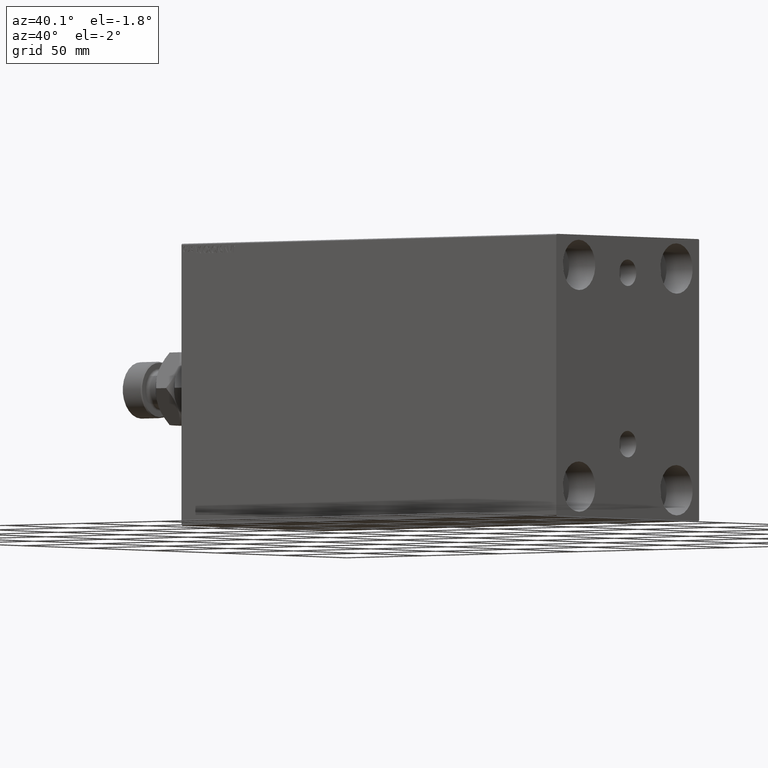
[diagram: clean part render]
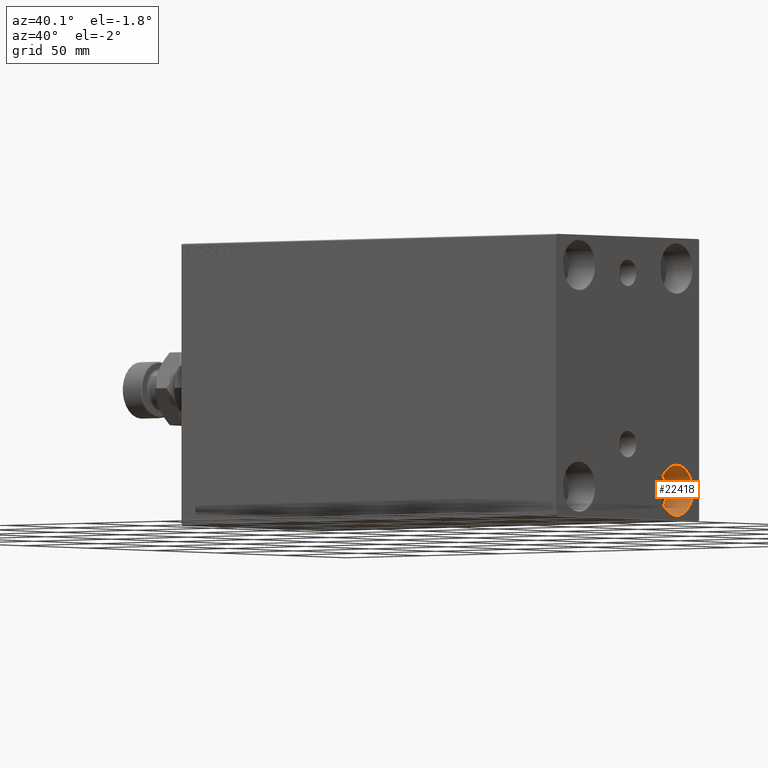
[diagram: same view with one face highlighted and labeled with its STEP entity id]
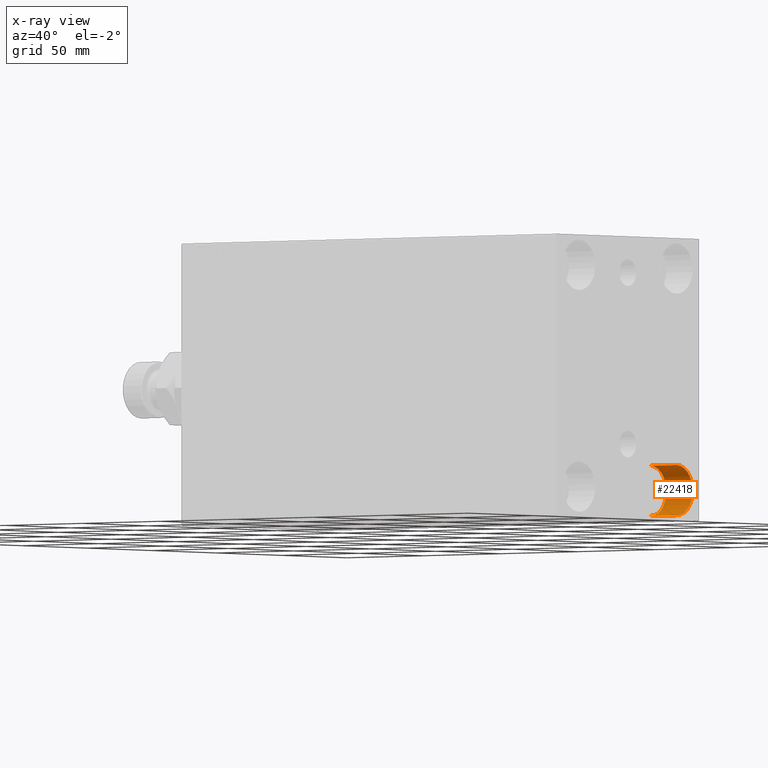
[diagram: x-ray of the same camera — body ghosted, the highlighted face saturated]
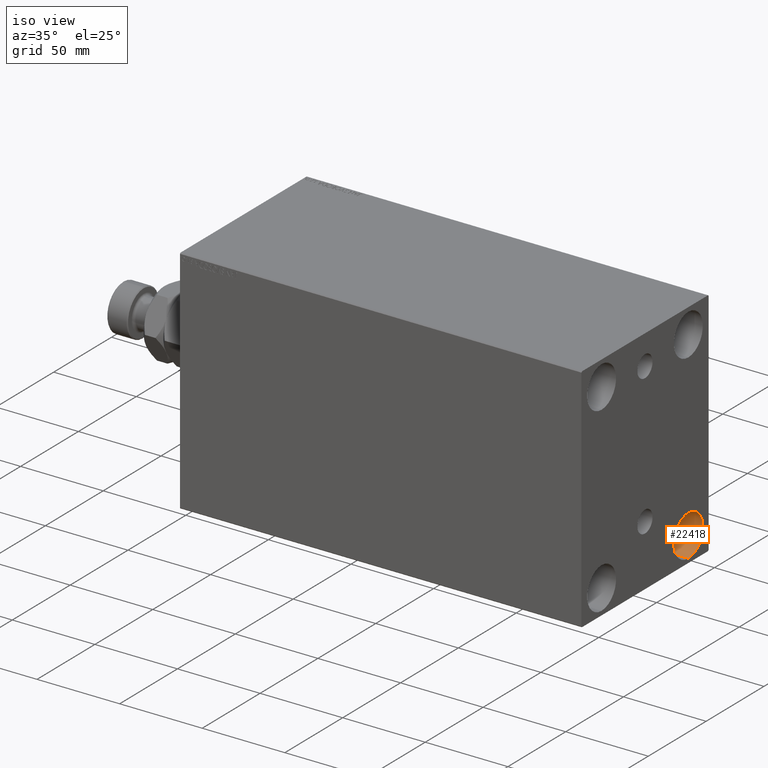
[diagram: same view with one face highlighted and labeled with its STEP entity id]
A machine part, auxiliary view. The second image highlights one B-rep face of the part: STEP entity #22418.
The next image is the same camera in x-ray: the body ghosted, the highlighted face saturated — about 0% of this face is hidden behind the body in this view.
A second angle (iso view) of the same face is appended — the face is thin or edge-on in the first view.
In plain terms, the highlighted cylindrical surface (edge-blend (fillet) strip) has radius 12.5 mm, axis along (1, 0, 0).
Its self-contained STEP definition (entity closure, byte-faithful):
#53 = ORIENTED_EDGE ( 'NONE', *, *, #460, .T. ) ;
#316 = DIRECTION ( 'NONE',  ( 1.000000000000000000, -0.000000000000000000, -0.000000000000000000 ) ) ;
#460 = EDGE_CURVE ( 'NONE', #41767, #4973, #36308, .T. ) ;
#593 = CARTESIAN_POINT ( 'NONE',  ( 243.0000000000000000, 37.49999999999997868, -67.49999999999998579 ) ) ;
#903 = EDGE_LOOP ( 'NONE', ( #16406, #10019, #53, #9453 ) ) ;
#4377 = CYLINDRICAL_SURFACE ( 'NONE', #22768, 12.49999999999999645 ) ;
#4973 = VERTEX_POINT ( 'NONE', #593 ) ;
#5114 = DIRECTION ( 'NONE',  ( -1.000000000000000000, -0.000000000000000000, -0.000000000000000000 ) ) ;
#7680 = CARTESIAN_POINT ( 'NONE',  ( 225.9999999999999716, 37.49999999999997868, -42.49999999999999289 ) ) ;
#8336 = VERTEX_POINT ( 'NONE', #13579 ) ;
#9143 = DIRECTION ( 'NONE',  ( 0.000000000000000000, 0.000000000000000000, 1.000000000000000000 ) ) ;
#9453 = ORIENTED_EDGE ( 'NONE', *, *, #22826, .F. ) ;
#10019 = ORIENTED_EDGE ( 'NONE', *, *, #11436, .T. ) ;
#11436 = EDGE_CURVE ( 'NONE', #8336, #41767, #35059, .T. ) ;
#11694 = VECTOR ( 'NONE', #316, 1000.000000000000000 ) ;
#12127 = DIRECTION ( 'NONE',  ( 1.000000000000000000, -0.000000000000000000, -0.000000000000000000 ) ) ;
#13579 = CARTESIAN_POINT ( 'NONE',  ( 225.9999999999999716, 37.49999999999997868, -42.49999999999999289 ) ) ;
#14977 = DIRECTION ( 'NONE',  ( 1.000000000000000000, -0.000000000000000000, -0.000000000000000000 ) ) ;
#15360 = CARTESIAN_POINT ( 'NONE',  ( 225.9999999999999716, 37.49999999999997868, -67.49999999999998579 ) ) ;
#15895 = EDGE_CURVE ( 'NONE', #8336, #43683, #21280, .T. ) ;
#16406 = ORIENTED_EDGE ( 'NONE', *, *, #15895, .F. ) ;
#16685 = AXIS2_PLACEMENT_3D ( 'NONE', #23078, #5114, #26293 ) ;
#16881 = CIRCLE ( 'NONE', #27877, 12.49999999999999645 ) ;
#20196 = DIRECTION ( 'NONE',  ( -1.000000000000000000, -0.000000000000000000, -0.000000000000000000 ) ) ;
#21280 = LINE ( 'NONE', #7680, #11694 ) ;
#22418 = ADVANCED_FACE ( 'NONE', ( #29470 ), #4377, .F. ) ;
#22768 = AXIS2_PLACEMENT_3D ( 'NONE', #29246, #14977, #43511 ) ;
#22826 = EDGE_CURVE ( 'NONE', #43683, #4973, #16881, .T. ) ;
#23078 = CARTESIAN_POINT ( 'NONE',  ( 225.9999999999999716, 37.49999999999997868, -54.99999999999999289 ) ) ;
#24770 = CARTESIAN_POINT ( 'NONE',  ( 225.9999999999999716, 37.49999999999997868, -67.49999999999998579 ) ) ;
#26293 = DIRECTION ( 'NONE',  ( 0.000000000000000000, 0.000000000000000000, 1.000000000000000000 ) ) ;
#27877 = AXIS2_PLACEMENT_3D ( 'NONE', #37451, #20196, #9143 ) ;
#29246 = CARTESIAN_POINT ( 'NONE',  ( 225.9999999999999716, 37.49999999999997868, -54.99999999999999289 ) ) ;
#29470 = FACE_OUTER_BOUND ( 'NONE', #903, .T. ) ;
#33786 = CARTESIAN_POINT ( 'NONE',  ( 243.0000000000000000, 37.49999999999997868, -42.49999999999999289 ) ) ;
#35059 = CIRCLE ( 'NONE', #16685, 12.49999999999999645 ) ;
#36308 = LINE ( 'NONE', #15360, #41984 ) ;
#37451 = CARTESIAN_POINT ( 'NONE',  ( 243.0000000000000000, 37.49999999999997868, -54.99999999999999289 ) ) ;
#41767 = VERTEX_POINT ( 'NONE', #24770 ) ;
#41984 = VECTOR ( 'NONE', #12127, 1000.000000000000000 ) ;
#43511 = DIRECTION ( 'NONE',  ( 0.000000000000000000, 0.000000000000000000, -1.000000000000000000 ) ) ;
#43683 = VERTEX_POINT ( 'NONE', #33786 ) ;